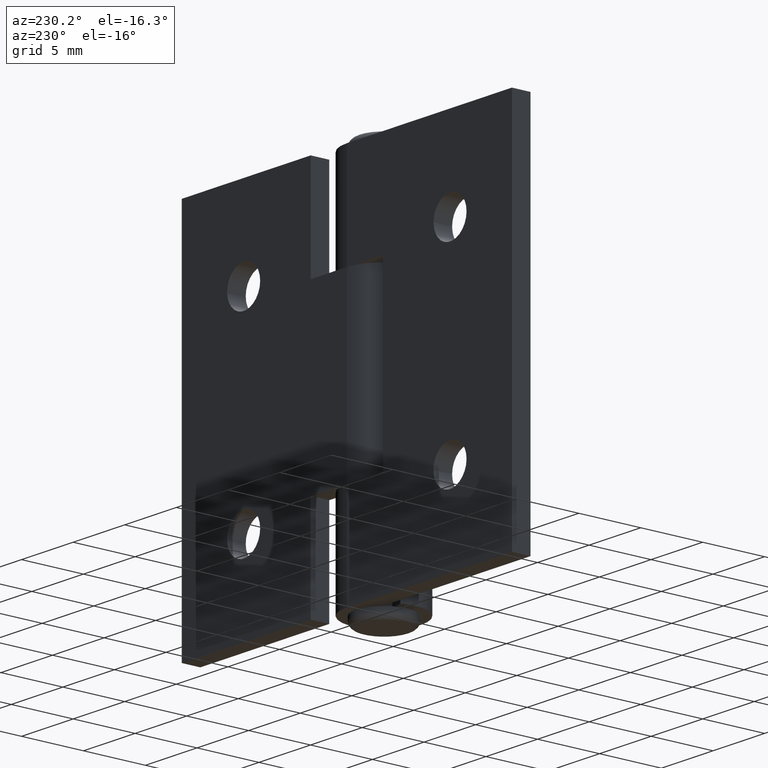
[diagram: clean part render]
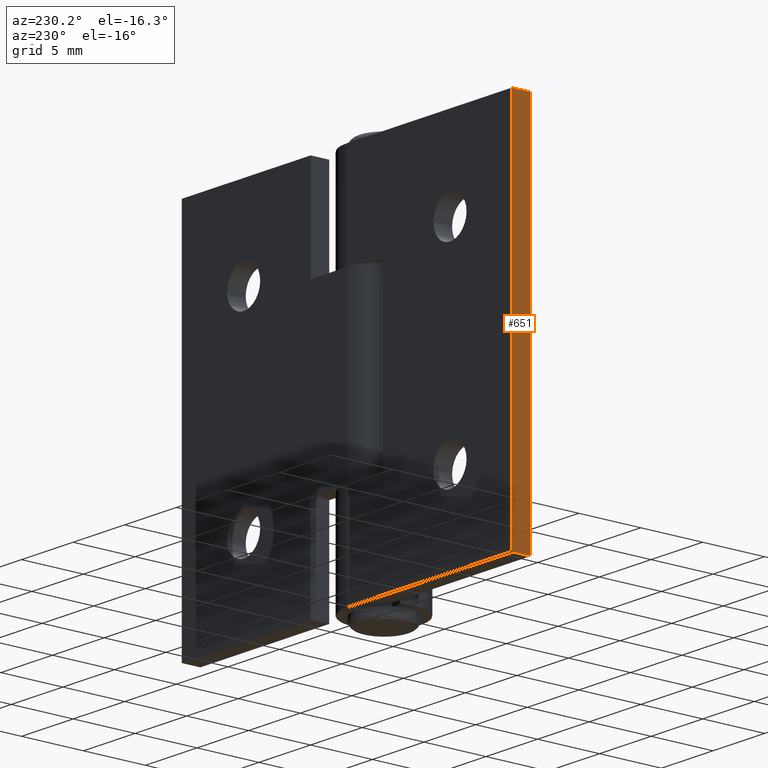
[diagram: same view with one face highlighted and labeled with its STEP entity id]
A machine part, auxiliary view. The second image highlights one B-rep face of the part: STEP entity #651.
In plain terms, the highlighted planar face has unit normal (-1, 0, 0).
Its self-contained STEP definition (entity closure, byte-faithful):
#69=LINE('',#1057,#123);
#77=LINE('',#1076,#131);
#80=LINE('',#1082,#134);
#81=LINE('',#1084,#135);
#123=VECTOR('',#854,30.);
#131=VECTOR('',#874,1.5);
#134=VECTOR('',#879,30.);
#135=VECTOR('',#882,1.5);
#156=PLANE('',#713);
#207=FACE_OUTER_BOUND('',#258,.T.);
#258=EDGE_LOOP('',(#575,#576,#577,#578));
#348=VERTEX_POINT('',#1054);
#349=VERTEX_POINT('',#1056);
#354=VERTEX_POINT('',#1074);
#356=VERTEX_POINT('',#1080);
#421=EDGE_CURVE('',#348,#349,#69,.T.);
#431=EDGE_CURVE('',#354,#348,#77,.T.);
#434=EDGE_CURVE('',#354,#356,#80,.T.);
#435=EDGE_CURVE('',#349,#356,#81,.T.);
#575=ORIENTED_EDGE('',*,*,#434,.T.);
#576=ORIENTED_EDGE('',*,*,#435,.F.);
#577=ORIENTED_EDGE('',*,*,#421,.F.);
#578=ORIENTED_EDGE('',*,*,#431,.F.);
#651=ADVANCED_FACE('',(#207),#156,.T.);
#713=AXIS2_PLACEMENT_3D('',#1083,#880,#881);
#854=DIRECTION('',(0.,0.,1.));
#874=DIRECTION('',(0.,1.,0.));
#879=DIRECTION('',(0.,0.,1.));
#880=DIRECTION('center_axis',(-1.,0.,0.));
#881=DIRECTION('ref_axis',(0.,-1.,0.));
#882=DIRECTION('',(0.,-1.,0.));
#1054=CARTESIAN_POINT('',(-16.,1.5,-15.));
#1056=CARTESIAN_POINT('',(-16.,1.5,15.));
#1057=CARTESIAN_POINT('',(-16.,1.5,0.));
#1074=CARTESIAN_POINT('',(-16.,0.,-15.));
#1076=CARTESIAN_POINT('',(-16.,1.5,-15.));
#1080=CARTESIAN_POINT('',(-16.,0.,15.));
#1082=CARTESIAN_POINT('',(-16.,0.,0.));
#1083=CARTESIAN_POINT('Origin',(-16.,1.5,0.));
#1084=CARTESIAN_POINT('',(-16.,1.5,15.));